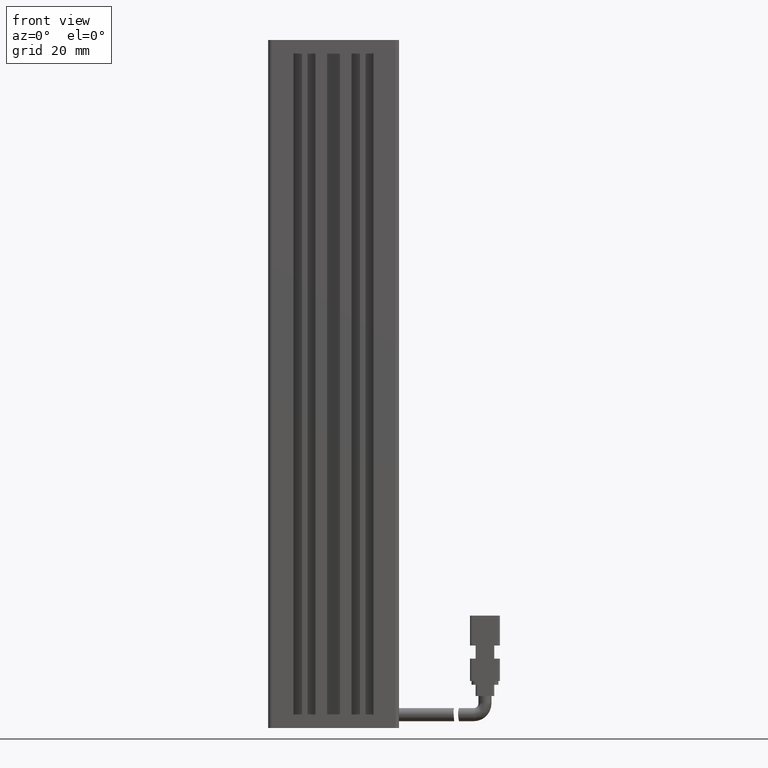
[diagram: clean part render]
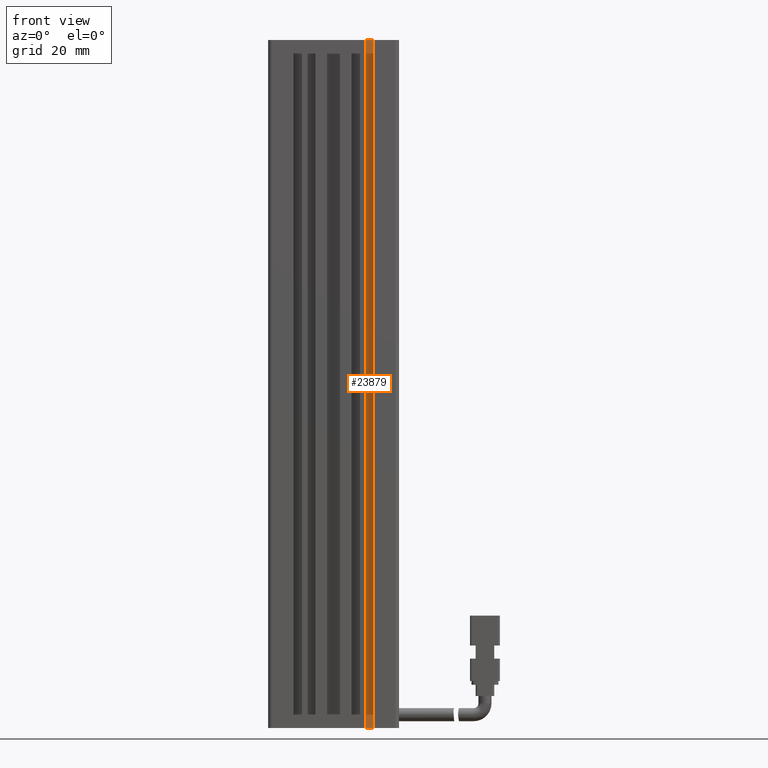
[diagram: same view with one face highlighted and labeled with its STEP entity id]
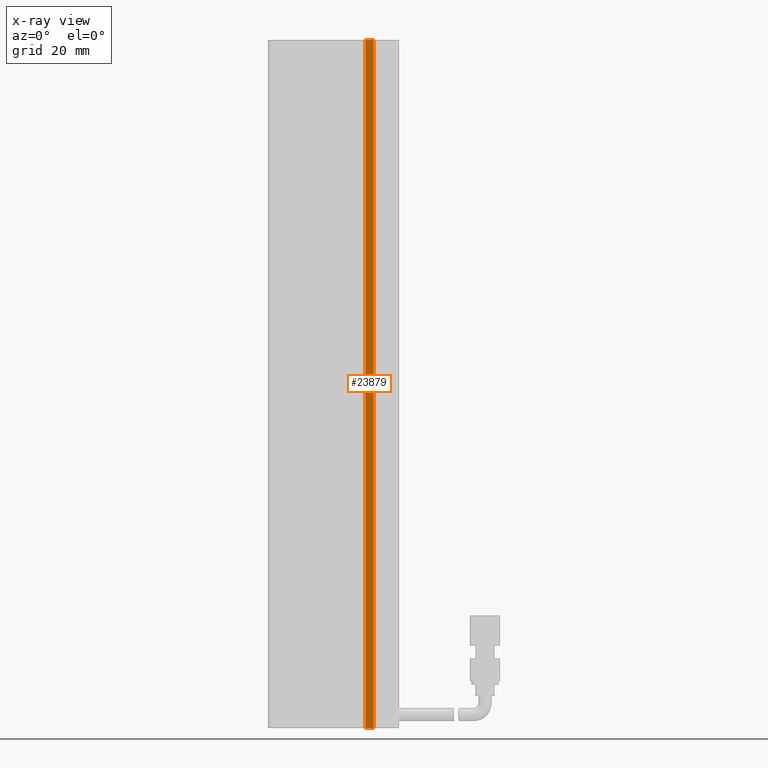
[diagram: x-ray of the same camera — body ghosted, the highlighted face saturated]
A machine part, front view. The second image highlights one B-rep face of the part: STEP entity #23879.
The next image is the same camera in x-ray: the body ghosted, the highlighted face saturated — about 0% of this face is hidden behind the body in this view.
In plain terms, the highlighted planar face has unit normal (0, -1, 0).
Its self-contained STEP definition (entity closure, byte-faithful):
#2937 = VERTEX_POINT ( 'NONE', #7237 ) ;
#3069 = ORIENTED_EDGE ( 'NONE', *, *, #9554, .F. ) ;
#3175 = CARTESIAN_POINT ( 'NONE',  ( 40.92537974683542500, 16.49073232304836600, -23.00000000000000700 ) ) ;
#4636 = LINE ( 'NONE', #46186, #75941 ) ;
#4903 = DIRECTION ( 'NONE',  ( 0.0000000000000000000, -0.0000000000000000000, -1.000000000000000000 ) ) ;
#5102 = VERTEX_POINT ( 'NONE', #26633 ) ;
#5232 = CARTESIAN_POINT ( 'NONE',  ( 51.62537974683541400, 16.49073232304836600, -23.00000000000000700 ) ) ;
#7237 = CARTESIAN_POINT ( 'NONE',  ( 51.62537974683542100, 16.49073232304836600, -22.99999999999999300 ) ) ;
#8838 = LINE ( 'NONE', #53811, #75382 ) ;
#9554 = EDGE_CURVE ( 'NONE', #2937, #5102, #75218, .T. ) ;
#10769 = CARTESIAN_POINT ( 'NONE',  ( 40.92537974683542500, 16.49073232304836600, -23.00000000000000700 ) ) ;
#11105 = ORIENTED_EDGE ( 'NONE', *, *, #67205, .T. ) ;
#17609 = VECTOR ( 'NONE', #45253, 1000.000000000000000 ) ;
#20663 = VERTEX_POINT ( 'NONE', #25177 ) ;
#23879 = ADVANCED_FACE ( 'NONE', ( #52354 ), #41445, .T. ) ;
#25177 = CARTESIAN_POINT ( 'NONE',  ( 49.42537974683541800, 16.49073232304836600, -22.99999999999999300 ) ) ;
#26633 = CARTESIAN_POINT ( 'NONE',  ( 51.62537974683542100, 16.49073232304836600, -207.0000000000000300 ) ) ;
#28058 = LINE ( 'NONE', #3175, #17609 ) ;
#29402 = DIRECTION ( 'NONE',  ( 0.0000000000000000000, -1.000000000000000000, 0.0000000000000000000 ) ) ;
#29656 = VECTOR ( 'NONE', #61301, 1000.000000000000000 ) ;
#33458 = EDGE_CURVE ( 'NONE', #51383, #5102, #4636, .T. ) ;
#41445 = PLANE ( 'NONE',  #45085 ) ;
#45085 = AXIS2_PLACEMENT_3D ( 'NONE', #10769, #29402, #59135 ) ;
#45253 = DIRECTION ( 'NONE',  ( 1.000000000000000000, 0.0000000000000000000, 0.0000000000000000000 ) ) ;
#45699 = ORIENTED_EDGE ( 'NONE', *, *, #33458, .T. ) ;
#46186 = CARTESIAN_POINT ( 'NONE',  ( 40.92537974683542500, 16.49073232304836600, -207.0000000000000300 ) ) ;
#46447 = DIRECTION ( 'NONE',  ( 1.000000000000000000, 0.0000000000000000000, 0.0000000000000000000 ) ) ;
#50036 = EDGE_CURVE ( 'NONE', #20663, #2937, #28058, .T. ) ;
#51383 = VERTEX_POINT ( 'NONE', #75032 ) ;
#52354 = FACE_OUTER_BOUND ( 'NONE', #74769, .T. ) ;
#53811 = CARTESIAN_POINT ( 'NONE',  ( 49.42537974683541800, 16.49073232304836600, -23.00000000000000700 ) ) ;
#55170 = ORIENTED_EDGE ( 'NONE', *, *, #50036, .F. ) ;
#59135 = DIRECTION ( 'NONE',  ( 0.0000000000000000000, -0.0000000000000000000, -1.000000000000000000 ) ) ;
#61301 = DIRECTION ( 'NONE',  ( -0.0000000000000000000, -0.0000000000000000000, -1.000000000000000000 ) ) ;
#67205 = EDGE_CURVE ( 'NONE', #20663, #51383, #8838, .T. ) ;
#74769 = EDGE_LOOP ( 'NONE', ( #55170, #11105, #45699, #3069 ) ) ;
#75032 = CARTESIAN_POINT ( 'NONE',  ( 49.42537974683541800, 16.49073232304836600, -207.0000000000000300 ) ) ;
#75218 = LINE ( 'NONE', #5232, #29656 ) ;
#75382 = VECTOR ( 'NONE', #4903, 1000.000000000000000 ) ;
#75941 = VECTOR ( 'NONE', #46447, 1000.000000000000000 ) ;